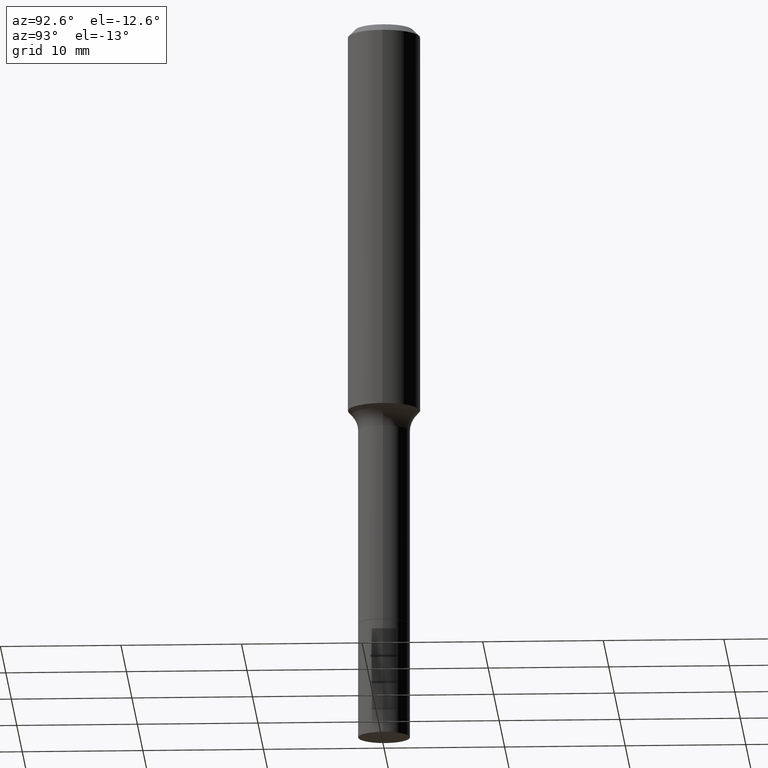
[diagram: clean part render]
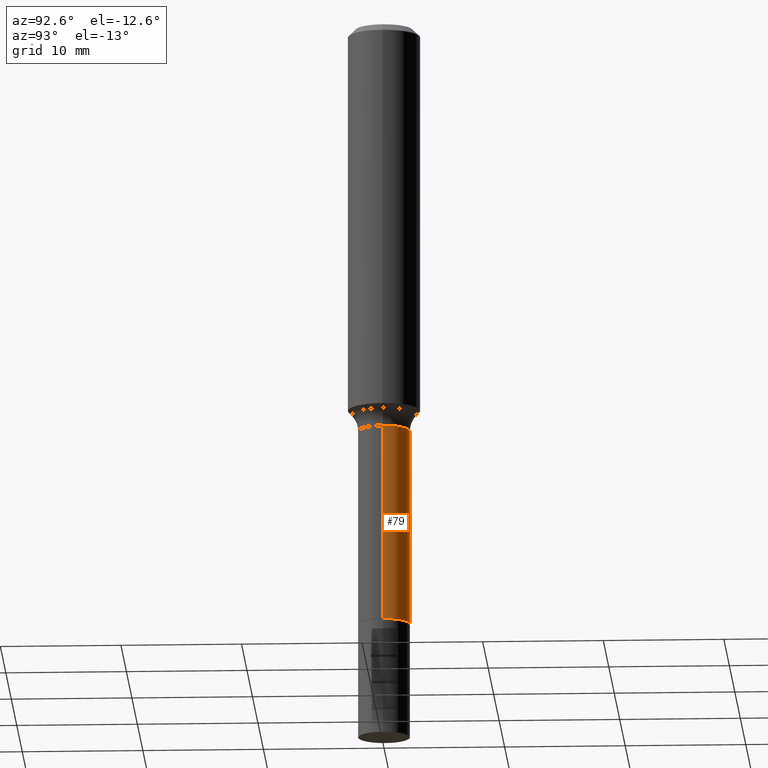
[diagram: same view with one face highlighted and labeled with its STEP entity id]
A machine part, auxiliary view. The second image highlights one B-rep face of the part: STEP entity #79.
In plain terms, the highlighted cylindrical surface (edge-blend (fillet) strip) has radius 2.1501 mm, axis along (-0, 0, 1).
Its self-contained STEP definition (entity closure, byte-faithful):
#12 = DIRECTION ( 'NONE',  ( 1.000000000000000000, -6.982962677686266711E-15, 4.876176775795935232E-29 ) ) ;
#17 = DIRECTION ( 'NONE',  ( -2.445468806185136877E-29, 3.491481338843145188E-15, 1.000000000000000000 ) ) ;
#26 = CARTESIAN_POINT ( 'NONE',  ( -0.08464999999999997526, 6.014744258209246316E-16, -4.163878553900776454E-30 ) ) ;
#35 = CARTESIAN_POINT ( 'NONE',  ( -0.08464999999999991975, -5.197701503930597829E-15, -1.338200000000000056 ) ) ;
#39 = LINE ( 'NONE', #26, #436 ) ;
#44 = EDGE_CURVE ( 'NONE', #166, #73, #296, .T. ) ;
#48 = VECTOR ( 'NONE', #17, 39.37007874015748143 ) ;
#63 = CARTESIAN_POINT ( 'NONE',  ( 3.272526356436949336E-29, -4.672300327639896745E-15, -1.338200000000000056 ) ) ;
#73 = VERTEX_POINT ( 'NONE', #173 ) ;
#79 = ADVANCED_FACE ( 'NONE', ( #371 ), #210, .T. ) ;
#83 = AXIS2_PLACEMENT_3D ( 'NONE', #63, #193, #353 ) ;
#88 = CARTESIAN_POINT ( 'NONE',  ( 0.08464999999999997526, -5.911077906661423090E-16, 4.127683640711257810E-30 ) ) ;
#109 = DIRECTION ( 'NONE',  ( 1.000000000000000000, -6.982962677686269077E-15, 0.000000000000000000 ) ) ;
#118 = EDGE_LOOP ( 'NONE', ( #320, #400, #486, #282 ) ) ;
#126 = VERTEX_POINT ( 'NONE', #35 ) ;
#148 = CARTESIAN_POINT ( 'NONE',  ( 0.08465000000000001690, -7.517159322529290979E-15, -1.983700000000000241 ) ) ;
#151 = DIRECTION ( 'NONE',  ( -2.445468806185136877E-29, 3.491481338843145188E-15, 1.000000000000000000 ) ) ;
#157 = EDGE_CURVE ( 'NONE', #214, #126, #39, .T. ) ;
#166 = VERTEX_POINT ( 'NONE', #148 ) ;
#171 = CARTESIAN_POINT ( 'NONE',  ( -0.08465000000000001690, -5.197701503930597040E-15, -1.983700000000000241 ) ) ;
#173 = CARTESIAN_POINT ( 'NONE',  ( 0.08464999999999991975, -5.263408118306038364E-15, -1.338200000000000056 ) ) ;
#179 = DIRECTION ( 'NONE',  ( -2.445468806185136597E-29, 3.491481338843145583E-15, 1.000000000000000000 ) ) ;
#183 = CARTESIAN_POINT ( 'NONE',  ( 4.851076470829456161E-29, -6.926051531863148571E-15, -1.983700000000000241 ) ) ;
#193 = DIRECTION ( 'NONE',  ( -2.445468806185136597E-29, 3.491481338843145583E-15, 1.000000000000000000 ) ) ;
#210 = CYLINDRICAL_SURFACE ( 'NONE', #401, 0.08464999999999997526 ) ;
#214 = VERTEX_POINT ( 'NONE', #171 ) ;
#217 = EDGE_CURVE ( 'NONE', #166, #214, #306, .T. ) ;
#282 = ORIENTED_EDGE ( 'NONE', *, *, #44, .F. ) ;
#296 = LINE ( 'NONE', #88, #48 ) ;
#306 = CIRCLE ( 'NONE', #448, 0.08465000000000001690 ) ;
#320 = ORIENTED_EDGE ( 'NONE', *, *, #217, .T. ) ;
#325 = EDGE_CURVE ( 'NONE', #73, #126, #449, .T. ) ;
#353 = DIRECTION ( 'NONE',  ( 1.000000000000000000, -6.982962677686265133E-15, 0.000000000000000000 ) ) ;
#365 = DIRECTION ( 'NONE',  ( -2.445468806185136597E-29, 3.491481338843145583E-15, 1.000000000000000000 ) ) ;
#371 = FACE_OUTER_BOUND ( 'NONE', #118, .T. ) ;
#400 = ORIENTED_EDGE ( 'NONE', *, *, #157, .T. ) ;
#401 = AXIS2_PLACEMENT_3D ( 'NONE', #422, #365, #12 ) ;
#422 = CARTESIAN_POINT ( 'NONE',  ( 0.000000000000000000, 0.000000000000000000, 0.000000000000000000 ) ) ;
#436 = VECTOR ( 'NONE', #151, 39.37007874015748143 ) ;
#448 = AXIS2_PLACEMENT_3D ( 'NONE', #183, #179, #109 ) ;
#449 = CIRCLE ( 'NONE', #83, 0.08464999999999991975 ) ;
#486 = ORIENTED_EDGE ( 'NONE', *, *, #325, .F. ) ;